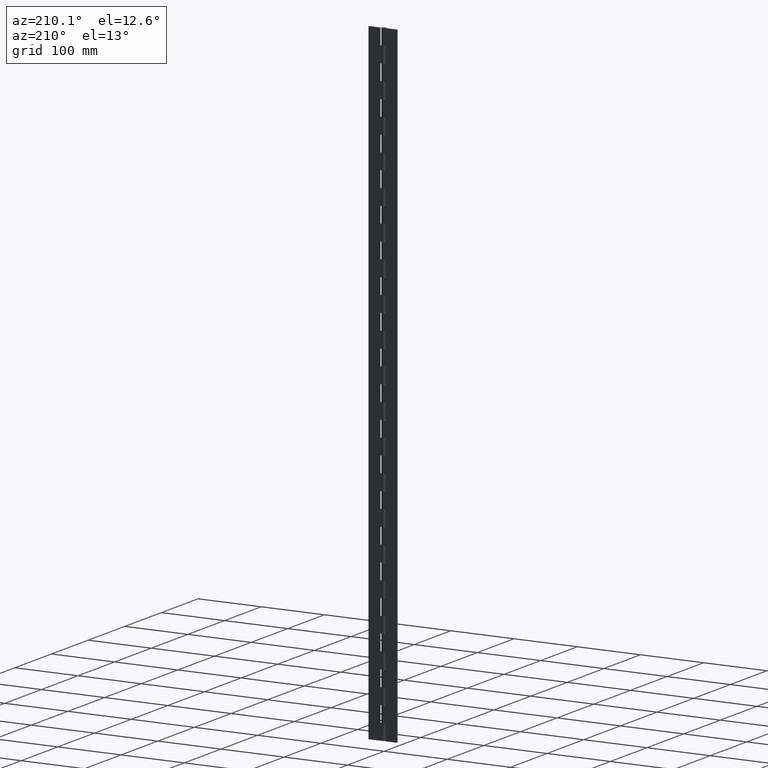
[diagram: clean part render]
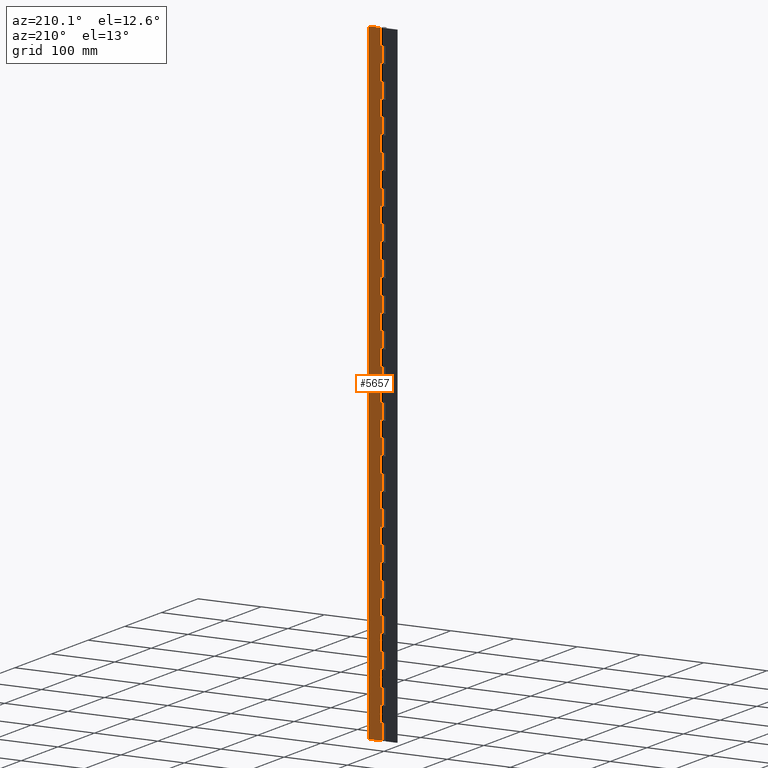
[diagram: same view with one face highlighted and labeled with its STEP entity id]
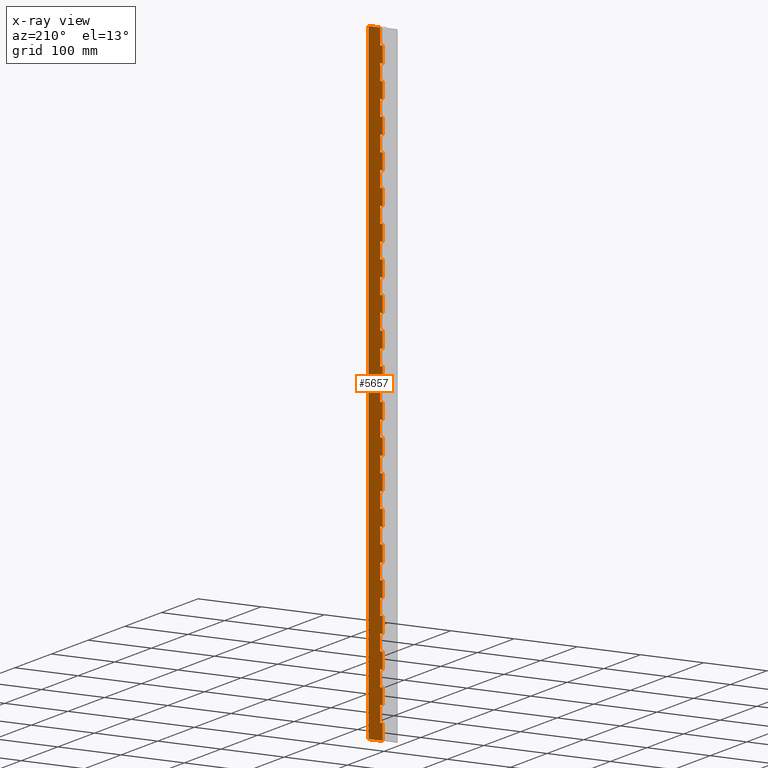
[diagram: x-ray of the same camera — body ghosted, the highlighted face saturated]
A machine part, auxiliary view. The second image highlights one B-rep face of the part: STEP entity #5657.
The next image is the same camera in x-ray: the body ghosted, the highlighted face saturated — about 0% of this face is hidden behind the body in this view.
In plain terms, the highlighted face is a freeform B-spline surface patch.
Its self-contained STEP definition (entity closure, byte-faithful):
#51=CARTESIAN_POINT('',(4.299996000000000,3.349998000000000,999.999977999999940));
#52=VERTEX_POINT('',#51);
#58=CARTESIAN_POINT('',(4.299996000000000,3.349998000000000,975.0));
#59=VERTEX_POINT('',#58);
#60=CARTESIAN_POINT('',(4.299996000000000,3.349998000000000,975.0));
#61=CARTESIAN_POINT('',(4.299996000000000,3.349998000000000,999.999977999999940));
#62=QUASI_UNIFORM_CURVE('',1,(#60,#61),.UNSPECIFIED.,.F.,.U.);
#63=EDGE_CURVE('',#59,#52,#62,.T.);
#86=CARTESIAN_POINT('',(0.003660600504215,3.349998000000000,975.0));
#87=VERTEX_POINT('',#86);
#88=CARTESIAN_POINT('',(0.003660600504215,3.349998000000000,975.0));
#89=CARTESIAN_POINT('',(4.299996000000000,3.349998000000000,975.0));
#90=QUASI_UNIFORM_CURVE('',1,(#88,#89),.UNSPECIFIED.,.F.,.U.);
#91=EDGE_CURVE('',#87,#59,#90,.T.);
#213=CARTESIAN_POINT('',(0.003660600504215,3.349998000000000,950.000007999999980));
#214=VERTEX_POINT('',#213);
#220=CARTESIAN_POINT('',(4.299996000000000,3.349998000000000,950.000007999999980));
#221=VERTEX_POINT('',#220);
#222=CARTESIAN_POINT('',(4.299996000000000,3.349998000000000,950.000007999999980));
#223=CARTESIAN_POINT('',(0.003660600504215,3.349998000000000,950.000007999999980));
#224=QUASI_UNIFORM_CURVE('',1,(#222,#223),.UNSPECIFIED.,.F.,.U.);
#225=EDGE_CURVE('',#221,#214,#224,.T.);
#248=CARTESIAN_POINT('',(4.299996000000000,3.349998000000000,925.0));
#249=VERTEX_POINT('',#248);
#250=CARTESIAN_POINT('',(4.299996000000000,3.349998000000000,925.0));
#251=CARTESIAN_POINT('',(4.299996000000000,3.349998000000000,950.000007999999980));
#252=QUASI_UNIFORM_CURVE('',1,(#250,#251),.UNSPECIFIED.,.F.,.U.);
#253=EDGE_CURVE('',#249,#221,#252,.T.);
#276=CARTESIAN_POINT('',(0.003660600504215,3.349998000000000,925.0));
#277=VERTEX_POINT('',#276);
#278=CARTESIAN_POINT('',(0.003660600504215,3.349998000000000,925.0));
#279=CARTESIAN_POINT('',(4.299996000000000,3.349998000000000,925.0));
#280=QUASI_UNIFORM_CURVE('',1,(#278,#279),.UNSPECIFIED.,.F.,.U.);
#281=EDGE_CURVE('',#277,#249,#280,.T.);
#403=CARTESIAN_POINT('',(0.003660600504215,3.349998000000000,900.000007999999980));
#404=VERTEX_POINT('',#403);
#410=CARTESIAN_POINT('',(4.299996000000000,3.349998000000000,900.000007999999980));
#411=VERTEX_POINT('',#410);
#412=CARTESIAN_POINT('',(4.299996000000000,3.349998000000000,900.000007999999980));
#413=CARTESIAN_POINT('',(0.003660600504215,3.349998000000000,900.000007999999980));
#414=QUASI_UNIFORM_CURVE('',1,(#412,#413),.UNSPECIFIED.,.F.,.U.);
#415=EDGE_CURVE('',#411,#404,#414,.T.);
#438=CARTESIAN_POINT('',(4.299996000000000,3.349998000000000,875.0));
#439=VERTEX_POINT('',#438);
#440=CARTESIAN_POINT('',(4.299996000000000,3.349998000000000,875.0));
#441=CARTESIAN_POINT('',(4.299996000000000,3.349998000000000,900.000007999999980));
#442=QUASI_UNIFORM_CURVE('',1,(#440,#441),.UNSPECIFIED.,.F.,.U.);
#443=EDGE_CURVE('',#439,#411,#442,.T.);
#466=CARTESIAN_POINT('',(0.003660600504215,3.349998000000000,875.0));
#467=VERTEX_POINT('',#466);
#468=CARTESIAN_POINT('',(0.003660600504215,3.349998000000000,875.0));
#469=CARTESIAN_POINT('',(4.299996000000000,3.349998000000000,875.0));
#470=QUASI_UNIFORM_CURVE('',1,(#468,#469),.UNSPECIFIED.,.F.,.U.);
#471=EDGE_CURVE('',#467,#439,#470,.T.);
#593=CARTESIAN_POINT('',(0.003660600504215,3.349998000000000,850.000007999999980));
#594=VERTEX_POINT('',#593);
#600=CARTESIAN_POINT('',(4.299996000000000,3.349998000000000,850.000007999999980));
#601=VERTEX_POINT('',#600);
#602=CARTESIAN_POINT('',(4.299996000000000,3.349998000000000,850.000007999999980));
#603=CARTESIAN_POINT('',(0.003660600504215,3.349998000000000,850.000007999999980));
#604=QUASI_UNIFORM_CURVE('',1,(#602,#603),.UNSPECIFIED.,.F.,.U.);
#605=EDGE_CURVE('',#601,#594,#604,.T.);
#628=CARTESIAN_POINT('',(4.299996000000000,3.349998000000000,825.0));
#629=VERTEX_POINT('',#628);
#630=CARTESIAN_POINT('',(4.299996000000000,3.349998000000000,825.0));
#631=CARTESIAN_POINT('',(4.299996000000000,3.349998000000000,850.000007999999980));
#632=QUASI_UNIFORM_CURVE('',1,(#630,#631),.UNSPECIFIED.,.F.,.U.);
#633=EDGE_CURVE('',#629,#601,#632,.T.);
#656=CARTESIAN_POINT('',(0.003660600504215,3.349998000000000,825.0));
#657=VERTEX_POINT('',#656);
#658=CARTESIAN_POINT('',(0.003660600504215,3.349998000000000,825.0));
#659=CARTESIAN_POINT('',(4.299996000000000,3.349998000000000,825.0));
#660=QUASI_UNIFORM_CURVE('',1,(#658,#659),.UNSPECIFIED.,.F.,.U.);
#661=EDGE_CURVE('',#657,#629,#660,.T.);
#783=CARTESIAN_POINT('',(0.003660600504215,3.349998000000000,800.000008000000090));
#784=VERTEX_POINT('',#783);
#790=CARTESIAN_POINT('',(4.299996000000000,3.349998000000000,800.000008000000090));
#791=VERTEX_POINT('',#790);
#792=CARTESIAN_POINT('',(4.299996000000000,3.349998000000000,800.000008000000090));
#793=CARTESIAN_POINT('',(0.003660600504215,3.349998000000000,800.000008000000090));
#794=QUASI_UNIFORM_CURVE('',1,(#792,#793),.UNSPECIFIED.,.F.,.U.);
#795=EDGE_CURVE('',#791,#784,#794,.T.);
#818=CARTESIAN_POINT('',(4.299996000000000,3.349998000000000,775.0));
#819=VERTEX_POINT('',#818);
#820=CARTESIAN_POINT('',(4.299996000000000,3.349998000000000,775.0));
#821=CARTESIAN_POINT('',(4.299996000000000,3.349998000000000,800.000008000000090));
#822=QUASI_UNIFORM_CURVE('',1,(#820,#821),.UNSPECIFIED.,.F.,.U.);
#823=EDGE_CURVE('',#819,#791,#822,.T.);
#846=CARTESIAN_POINT('',(0.003660600504215,3.349998000000000,775.0));
#847=VERTEX_POINT('',#846);
#848=CARTESIAN_POINT('',(0.003660600504215,3.349998000000000,775.0));
#849=CARTESIAN_POINT('',(4.299996000000000,3.349998000000000,775.0));
#850=QUASI_UNIFORM_CURVE('',1,(#848,#849),.UNSPECIFIED.,.F.,.U.);
#851=EDGE_CURVE('',#847,#819,#850,.T.);
#973=CARTESIAN_POINT('',(0.003660600504215,3.349998000000000,750.000007999999980));
#974=VERTEX_POINT('',#973);
#980=CARTESIAN_POINT('',(4.299996000000000,3.349998000000000,750.000007999999980));
#981=VERTEX_POINT('',#980);
#982=CARTESIAN_POINT('',(4.299996000000000,3.349998000000000,750.000007999999980));
#983=CARTESIAN_POINT('',(0.003660600504215,3.349998000000000,750.000007999999980));
#984=QUASI_UNIFORM_CURVE('',1,(#982,#983),.UNSPECIFIED.,.F.,.U.);
#985=EDGE_CURVE('',#981,#974,#984,.T.);
#1008=CARTESIAN_POINT('',(4.299996000000000,3.349998000000000,725.0));
#1009=VERTEX_POINT('',#1008);
#1010=CARTESIAN_POINT('',(4.299996000000000,3.349998000000000,725.0));
#1011=CARTESIAN_POINT('',(4.299996000000000,3.349998000000000,750.000007999999980));
#1012=QUASI_UNIFORM_CURVE('',1,(#1010,#1011),.UNSPECIFIED.,.F.,.U.);
#1013=EDGE_CURVE('',#1009,#981,#1012,.T.);
#1036=CARTESIAN_POINT('',(0.003660600504215,3.349998000000000,725.0));
#1037=VERTEX_POINT('',#1036);
#1038=CARTESIAN_POINT('',(0.003660600504215,3.349998000000000,725.0));
#1039=CARTESIAN_POINT('',(4.299996000000000,3.349998000000000,725.0));
#1040=QUASI_UNIFORM_CURVE('',1,(#1038,#1039),.UNSPECIFIED.,.F.,.U.);
#1041=EDGE_CURVE('',#1037,#1009,#1040,.T.);
#1163=CARTESIAN_POINT('',(0.003660600504215,3.349998000000000,700.000007999999980));
#1164=VERTEX_POINT('',#1163);
#1170=CARTESIAN_POINT('',(4.299996000000000,3.349998000000000,700.000007999999980));
#1171=VERTEX_POINT('',#1170);
#1172=CARTESIAN_POINT('',(4.299996000000000,3.349998000000000,700.000007999999980));
#1173=CARTESIAN_POINT('',(0.003660600504215,3.349998000000000,700.000007999999980));
#1174=QUASI_UNIFORM_CURVE('',1,(#1172,#1173),.UNSPECIFIED.,.F.,.U.);
#1175=EDGE_CURVE('',#1171,#1164,#1174,.T.);
#1198=CARTESIAN_POINT('',(4.299996000000000,3.349998000000000,675.0));
#1199=VERTEX_POINT('',#1198);
#1200=CARTESIAN_POINT('',(4.299996000000000,3.349998000000000,675.0));
#1201=CARTESIAN_POINT('',(4.299996000000000,3.349998000000000,700.000007999999980));
#1202=QUASI_UNIFORM_CURVE('',1,(#1200,#1201),.UNSPECIFIED.,.F.,.U.);
#1203=EDGE_CURVE('',#1199,#1171,#1202,.T.);
#1226=CARTESIAN_POINT('',(0.003660600504215,3.349998000000000,675.0));
#1227=VERTEX_POINT('',#1226);
#1228=CARTESIAN_POINT('',(0.003660600504215,3.349998000000000,675.0));
#1229=CARTESIAN_POINT('',(4.299996000000000,3.349998000000000,675.0));
#1230=QUASI_UNIFORM_CURVE('',1,(#1228,#1229),.UNSPECIFIED.,.F.,.U.);
#1231=EDGE_CURVE('',#1227,#1199,#1230,.T.);
#1353=CARTESIAN_POINT('',(0.003660600504215,3.349998000000000,650.000007999999980));
#1354=VERTEX_POINT('',#1353);
#1360=CARTESIAN_POINT('',(4.299996000000000,3.349998000000000,650.000007999999980));
#1361=VERTEX_POINT('',#1360);
#1362=CARTESIAN_POINT('',(4.299996000000000,3.349998000000000,650.000007999999980));
#1363=CARTESIAN_POINT('',(0.003660600504215,3.349998000000000,650.000007999999980));
#1364=QUASI_UNIFORM_CURVE('',1,(#1362,#1363),.UNSPECIFIED.,.F.,.U.);
#1365=EDGE_CURVE('',#1361,#1354,#1364,.T.);
#1388=CARTESIAN_POINT('',(4.299996000000000,3.349998000000000,625.0));
#1389=VERTEX_POINT('',#1388);
#1390=CARTESIAN_POINT('',(4.299996000000000,3.349998000000000,625.0));
#1391=CARTESIAN_POINT('',(4.299996000000000,3.349998000000000,650.000007999999980));
#1392=QUASI_UNIFORM_CURVE('',1,(#1390,#1391),.UNSPECIFIED.,.F.,.U.);
#1393=EDGE_CURVE('',#1389,#1361,#1392,.T.);
#1416=CARTESIAN_POINT('',(0.003660600504215,3.349998000000000,625.0));
#1417=VERTEX_POINT('',#1416);
#1418=CARTESIAN_POINT('',(0.003660600504215,3.349998000000000,625.0));
#1419=CARTESIAN_POINT('',(4.299996000000000,3.349998000000000,625.0));
#1420=QUASI_UNIFORM_CURVE('',1,(#1418,#1419),.UNSPECIFIED.,.F.,.U.);
#1421=EDGE_CURVE('',#1417,#1389,#1420,.T.);
#1543=CARTESIAN_POINT('',(0.003660600504215,3.349998000000000,600.000007999999980));
#1544=VERTEX_POINT('',#1543);
#1550=CARTESIAN_POINT('',(4.299996000000000,3.349998000000000,600.000007999999980));
#1551=VERTEX_POINT('',#1550);
#1552=CARTESIAN_POINT('',(4.299996000000000,3.349998000000000,600.000007999999980));
#1553=CARTESIAN_POINT('',(0.003660600504215,3.349998000000000,600.000007999999980));
#1554=QUASI_UNIFORM_CURVE('',1,(#1552,#1553),.UNSPECIFIED.,.F.,.U.);
#1555=EDGE_CURVE('',#1551,#1544,#1554,.T.);
#1578=CARTESIAN_POINT('',(4.299996000000000,3.349998000000000,575.0));
#1579=VERTEX_POINT('',#1578);
#1580=CARTESIAN_POINT('',(4.299996000000000,3.349998000000000,575.0));
#1581=CARTESIAN_POINT('',(4.299996000000000,3.349998000000000,600.000007999999980));
#1582=QUASI_UNIFORM_CURVE('',1,(#1580,#1581),.UNSPECIFIED.,.F.,.U.);
#1583=EDGE_CURVE('',#1579,#1551,#1582,.T.);
#1606=CARTESIAN_POINT('',(0.003660600504215,3.349998000000000,575.0));
#1607=VERTEX_POINT('',#1606);
#1608=CARTESIAN_POINT('',(0.003660600504215,3.349998000000000,575.0));
#1609=CARTESIAN_POINT('',(4.299996000000000,3.349998000000000,575.0));
#1610=QUASI_UNIFORM_CURVE('',1,(#1608,#1609),.UNSPECIFIED.,.F.,.U.);
#1611=EDGE_CURVE('',#1607,#1579,#1610,.T.);
#1733=CARTESIAN_POINT('',(0.003660600504215,3.349998000000000,550.000008000000090));
#1734=VERTEX_POINT('',#1733);
#1740=CARTESIAN_POINT('',(4.299996000000000,3.349998000000000,550.000008000000090));
#1741=VERTEX_POINT('',#1740);
#1742=CARTESIAN_POINT('',(4.299996000000000,3.349998000000000,550.000008000000090));
#1743=CARTESIAN_POINT('',(0.003660600504215,3.349998000000000,550.000008000000090));
#1744=QUASI_UNIFORM_CURVE('',1,(#1742,#1743),.UNSPECIFIED.,.F.,.U.);
#1745=EDGE_CURVE('',#1741,#1734,#1744,.T.);
#1768=CARTESIAN_POINT('',(4.299996000000000,3.349998000000000,525.0));
#1769=VERTEX_POINT('',#1768);
#1770=CARTESIAN_POINT('',(4.299996000000000,3.349998000000000,525.0));
#1771=CARTESIAN_POINT('',(4.299996000000000,3.349998000000000,550.000008000000090));
#1772=QUASI_UNIFORM_CURVE('',1,(#1770,#1771),.UNSPECIFIED.,.F.,.U.);
#1773=EDGE_CURVE('',#1769,#1741,#1772,.T.);
#1796=CARTESIAN_POINT('',(0.003660600504215,3.349998000000000,525.0));
#1797=VERTEX_POINT('',#1796);
#1798=CARTESIAN_POINT('',(0.003660600504215,3.349998000000000,525.0));
#1799=CARTESIAN_POINT('',(4.299996000000000,3.349998000000000,525.0));
#1800=QUASI_UNIFORM_CURVE('',1,(#1798,#1799),.UNSPECIFIED.,.F.,.U.);
#1801=EDGE_CURVE('',#1797,#1769,#1800,.T.);
#1923=CARTESIAN_POINT('',(0.003660600504215,3.349998000000000,500.000007999999980));
#1924=VERTEX_POINT('',#1923);
#1930=CARTESIAN_POINT('',(4.299996000000000,3.349998000000000,500.000007999999980));
#1931=VERTEX_POINT('',#1930);
#1932=CARTESIAN_POINT('',(4.299996000000000,3.349998000000000,500.000007999999980));
#1933=CARTESIAN_POINT('',(0.003660600504215,3.349998000000000,500.000007999999980));
#1934=QUASI_UNIFORM_CURVE('',1,(#1932,#1933),.UNSPECIFIED.,.F.,.U.);
#1935=EDGE_CURVE('',#1931,#1924,#1934,.T.);
#1958=CARTESIAN_POINT('',(4.299996000000000,3.349998000000000,475.0));
#1959=VERTEX_POINT('',#1958);
#1960=CARTESIAN_POINT('',(4.299996000000000,3.349998000000000,475.0));
#1961=CARTESIAN_POINT('',(4.299996000000000,3.349998000000000,500.000007999999980));
#1962=QUASI_UNIFORM_CURVE('',1,(#1960,#1961),.UNSPECIFIED.,.F.,.U.);
#1963=EDGE_CURVE('',#1959,#1931,#1962,.T.);
#1986=CARTESIAN_POINT('',(0.003660600504215,3.349998000000000,475.0));
#1987=VERTEX_POINT('',#1986);
#1988=CARTESIAN_POINT('',(0.003660600504215,3.349998000000000,475.0));
#1989=CARTESIAN_POINT('',(4.299996000000000,3.349998000000000,475.0));
#1990=QUASI_UNIFORM_CURVE('',1,(#1988,#1989),.UNSPECIFIED.,.F.,.U.);
#1991=EDGE_CURVE('',#1987,#1959,#1990,.T.);
#2113=CARTESIAN_POINT('',(0.003660600504215,3.349998000000000,450.000007999999980));
#2114=VERTEX_POINT('',#2113);
#2120=CARTESIAN_POINT('',(4.299996000000000,3.349998000000000,450.000007999999980));
#2121=VERTEX_POINT('',#2120);
#2122=CARTESIAN_POINT('',(4.299996000000000,3.349998000000000,450.000007999999980));
#2123=CARTESIAN_POINT('',(0.003660600504215,3.349998000000000,450.000007999999980));
#2124=QUASI_UNIFORM_CURVE('',1,(#2122,#2123),.UNSPECIFIED.,.F.,.U.);
#2125=EDGE_CURVE('',#2121,#2114,#2124,.T.);
#2148=CARTESIAN_POINT('',(4.299996000000000,3.349998000000000,425.0));
#2149=VERTEX_POINT('',#2148);
#2150=CARTESIAN_POINT('',(4.299996000000000,3.349998000000000,425.0));
#2151=CARTESIAN_POINT('',(4.299996000000000,3.349998000000000,450.000007999999980));
#2152=QUASI_UNIFORM_CURVE('',1,(#2150,#2151),.UNSPECIFIED.,.F.,.U.);
#2153=EDGE_CURVE('',#2149,#2121,#2152,.T.);
#2176=CARTESIAN_POINT('',(0.003660600504215,3.349998000000000,425.0));
#2177=VERTEX_POINT('',#2176);
#2178=CARTESIAN_POINT('',(0.003660600504215,3.349998000000000,425.0));
#2179=CARTESIAN_POINT('',(4.299996000000000,3.349998000000000,425.0));
#2180=QUASI_UNIFORM_CURVE('',1,(#2178,#2179),.UNSPECIFIED.,.F.,.U.);
#2181=EDGE_CURVE('',#2177,#2149,#2180,.T.);
#2303=CARTESIAN_POINT('',(0.003660600504215,3.349998000000000,400.000007999999980));
#2304=VERTEX_POINT('',#2303);
#2310=CARTESIAN_POINT('',(4.299996000000000,3.349998000000000,400.000007999999980));
#2311=VERTEX_POINT('',#2310);
#2312=CARTESIAN_POINT('',(4.299996000000000,3.349998000000000,400.000007999999980));
#2313=CARTESIAN_POINT('',(0.003660600504215,3.349998000000000,400.000007999999980));
#2314=QUASI_UNIFORM_CURVE('',1,(#2312,#2313),.UNSPECIFIED.,.F.,.U.);
#2315=EDGE_CURVE('',#2311,#2304,#2314,.T.);
#2338=CARTESIAN_POINT('',(4.299996000000000,3.349998000000000,375.0));
#2339=VERTEX_POINT('',#2338);
#2340=CARTESIAN_POINT('',(4.299996000000000,3.349998000000000,375.0));
#2341=CARTESIAN_POINT('',(4.299996000000000,3.349998000000000,400.000007999999980));
#2342=QUASI_UNIFORM_CURVE('',1,(#2340,#2341),.UNSPECIFIED.,.F.,.U.);
#2343=EDGE_CURVE('',#2339,#2311,#2342,.T.);
#2366=CARTESIAN_POINT('',(0.003660600504215,3.349998000000000,375.0));
#2367=VERTEX_POINT('',#2366);
#2368=CARTESIAN_POINT('',(0.003660600504215,3.349998000000000,375.0));
#2369=CARTESIAN_POINT('',(4.299996000000000,3.349998000000000,375.0));
#2370=QUASI_UNIFORM_CURVE('',1,(#2368,#2369),.UNSPECIFIED.,.F.,.U.);
#2371=EDGE_CURVE('',#2367,#2339,#2370,.T.);
#2493=CARTESIAN_POINT('',(0.003660600504215,3.349998000000000,350.000007999999980));
#2494=VERTEX_POINT('',#2493);
#2500=CARTESIAN_POINT('',(4.299996000000000,3.349998000000000,350.000007999999980));
#2501=VERTEX_POINT('',#2500);
#2502=CARTESIAN_POINT('',(4.299996000000000,3.349998000000000,350.000007999999980));
#2503=CARTESIAN_POINT('',(0.003660600504215,3.349998000000000,350.000007999999980));
#2504=QUASI_UNIFORM_CURVE('',1,(#2502,#2503),.UNSPECIFIED.,.F.,.U.);
#2505=EDGE_CURVE('',#2501,#2494,#2504,.T.);
#2528=CARTESIAN_POINT('',(4.299996000000000,3.349998000000000,325.0));
#2529=VERTEX_POINT('',#2528);
#2530=CARTESIAN_POINT('',(4.299996000000000,3.349998000000000,325.0));
#2531=CARTESIAN_POINT('',(4.299996000000000,3.349998000000000,350.000007999999980));
#2532=QUASI_UNIFORM_CURVE('',1,(#2530,#2531),.UNSPECIFIED.,.F.,.U.);
#2533=EDGE_CURVE('',#2529,#2501,#2532,.T.);
#2556=CARTESIAN_POINT('',(0.003660600504215,3.349998000000000,325.0));
#2557=VERTEX_POINT('',#2556);
#2558=CARTESIAN_POINT('',(0.003660600504215,3.349998000000000,325.0));
#2559=CARTESIAN_POINT('',(4.299996000000000,3.349998000000000,325.0));
#2560=QUASI_UNIFORM_CURVE('',1,(#2558,#2559),.UNSPECIFIED.,.F.,.U.);
#2561=EDGE_CURVE('',#2557,#2529,#2560,.T.);
#2683=CARTESIAN_POINT('',(0.003660600504215,3.349998000000000,300.000007999999980));
#2684=VERTEX_POINT('',#2683);
#2690=CARTESIAN_POINT('',(4.299996000000000,3.349998000000000,300.000007999999980));
#2691=VERTEX_POINT('',#2690);
#2692=CARTESIAN_POINT('',(4.299996000000000,3.349998000000000,300.000007999999980));
#2693=CARTESIAN_POINT('',(0.003660600504215,3.349998000000000,300.000007999999980));
#2694=QUASI_UNIFORM_CURVE('',1,(#2692,#2693),.UNSPECIFIED.,.F.,.U.);
#2695=EDGE_CURVE('',#2691,#2684,#2694,.T.);
#2718=CARTESIAN_POINT('',(4.299996000000000,3.349998000000000,275.0));
#2719=VERTEX_POINT('',#2718);
#2720=CARTESIAN_POINT('',(4.299996000000000,3.349998000000000,275.0));
#2721=CARTESIAN_POINT('',(4.299996000000000,3.349998000000000,300.000007999999980));
#2722=QUASI_UNIFORM_CURVE('',1,(#2720,#2721),.UNSPECIFIED.,.F.,.U.);
#2723=EDGE_CURVE('',#2719,#2691,#2722,.T.);
#2746=CARTESIAN_POINT('',(0.003660600504215,3.349998000000000,275.0));
#2747=VERTEX_POINT('',#2746);
#2748=CARTESIAN_POINT('',(0.003660600504215,3.349998000000000,275.0));
#2749=CARTESIAN_POINT('',(4.299996000000000,3.349998000000000,275.0));
#2750=QUASI_UNIFORM_CURVE('',1,(#2748,#2749),.UNSPECIFIED.,.F.,.U.);
#2751=EDGE_CURVE('',#2747,#2719,#2750,.T.);
#2873=CARTESIAN_POINT('',(0.003660600504215,3.349998000000000,250.000008000000010));
#2874=VERTEX_POINT('',#2873);
#2880=CARTESIAN_POINT('',(4.299996000000000,3.349998000000000,250.000008000000010));
#2881=VERTEX_POINT('',#2880);
#2882=CARTESIAN_POINT('',(4.299996000000000,3.349998000000000,250.000008000000010));
#2883=CARTESIAN_POINT('',(0.003660600504215,3.349998000000000,250.000008000000010));
#2884=QUASI_UNIFORM_CURVE('',1,(#2882,#2883),.UNSPECIFIED.,.F.,.U.);
#2885=EDGE_CURVE('',#2881,#2874,#2884,.T.);
#2908=CARTESIAN_POINT('',(4.299996000000000,3.349998000000000,225.0));
#2909=VERTEX_POINT('',#2908);
#2910=CARTESIAN_POINT('',(4.299996000000000,3.349998000000000,225.0));
#2911=CARTESIAN_POINT('',(4.299996000000000,3.349998000000000,250.000008000000010));
#2912=QUASI_UNIFORM_CURVE('',1,(#2910,#2911),.UNSPECIFIED.,.F.,.U.);
#2913=EDGE_CURVE('',#2909,#2881,#2912,.T.);
#2936=CARTESIAN_POINT('',(0.003660600504215,3.349998000000000,225.0));
#2937=VERTEX_POINT('',#2936);
#2938=CARTESIAN_POINT('',(0.003660600504215,3.349998000000000,225.0));
#2939=CARTESIAN_POINT('',(4.299996000000000,3.349998000000000,225.0));
#2940=QUASI_UNIFORM_CURVE('',1,(#2938,#2939),.UNSPECIFIED.,.F.,.U.);
#2941=EDGE_CURVE('',#2937,#2909,#2940,.T.);
#3063=CARTESIAN_POINT('',(0.003660600504215,3.349998000000000,200.000008000000010));
#3064=VERTEX_POINT('',#3063);
#3070=CARTESIAN_POINT('',(4.299996000000000,3.349998000000000,200.000008000000010));
#3071=VERTEX_POINT('',#3070);
#3072=CARTESIAN_POINT('',(4.299996000000000,3.349998000000000,200.000008000000010));
#3073=CARTESIAN_POINT('',(0.003660600504215,3.349998000000000,200.000008000000010));
#3074=QUASI_UNIFORM_CURVE('',1,(#3072,#3073),.UNSPECIFIED.,.F.,.U.);
#3075=EDGE_CURVE('',#3071,#3064,#3074,.T.);
#3098=CARTESIAN_POINT('',(4.299996000000000,3.349998000000000,175.0));
#3099=VERTEX_POINT('',#3098);
#3100=CARTESIAN_POINT('',(4.299996000000000,3.349998000000000,175.0));
#3101=CARTESIAN_POINT('',(4.299996000000000,3.349998000000000,200.000008000000010));
#3102=QUASI_UNIFORM_CURVE('',1,(#3100,#3101),.UNSPECIFIED.,.F.,.U.);
#3103=EDGE_CURVE('',#3099,#3071,#3102,.T.);
#3126=CARTESIAN_POINT('',(0.003660600504215,3.349998000000000,175.0));
#3127=VERTEX_POINT('',#3126);
#3128=CARTESIAN_POINT('',(0.003660600504215,3.349998000000000,175.0));
#3129=CARTESIAN_POINT('',(4.299996000000000,3.349998000000000,175.0));
#3130=QUASI_UNIFORM_CURVE('',1,(#3128,#3129),.UNSPECIFIED.,.F.,.U.);
#3131=EDGE_CURVE('',#3127,#3099,#3130,.T.);
#3253=CARTESIAN_POINT('',(0.003660600504215,3.349998000000000,150.000008000000010));
#3254=VERTEX_POINT('',#3253);
#3260=CARTESIAN_POINT('',(4.299996000000000,3.349998000000000,150.000008000000010));
#3261=VERTEX_POINT('',#3260);
#3262=CARTESIAN_POINT('',(4.299996000000000,3.349998000000000,150.000008000000010));
#3263=CARTESIAN_POINT('',(0.003660600504215,3.349998000000000,150.000008000000010));
#3264=QUASI_UNIFORM_CURVE('',1,(#3262,#3263),.UNSPECIFIED.,.F.,.U.);
#3265=EDGE_CURVE('',#3261,#3254,#3264,.T.);
#3288=CARTESIAN_POINT('',(4.299996000000000,3.349998000000000,125.0));
#3289=VERTEX_POINT('',#3288);
#3290=CARTESIAN_POINT('',(4.299996000000000,3.349998000000000,125.0));
#3291=CARTESIAN_POINT('',(4.299996000000000,3.349998000000000,150.000008000000010));
#3292=QUASI_UNIFORM_CURVE('',1,(#3290,#3291),.UNSPECIFIED.,.F.,.U.);
#3293=EDGE_CURVE('',#3289,#3261,#3292,.T.);
#3316=CARTESIAN_POINT('',(0.003660600504215,3.349998000000000,125.0));
#3317=VERTEX_POINT('',#3316);
#3318=CARTESIAN_POINT('',(0.003660600504215,3.349998000000000,125.0));
#3319=CARTESIAN_POINT('',(4.299996000000000,3.349998000000000,125.0));
#3320=QUASI_UNIFORM_CURVE('',1,(#3318,#3319),.UNSPECIFIED.,.F.,.U.);
#3321=EDGE_CURVE('',#3317,#3289,#3320,.T.);
#3443=CARTESIAN_POINT('',(0.003660600504215,3.349998000000000,100.000007999999990));
#3444=VERTEX_POINT('',#3443);
#3450=CARTESIAN_POINT('',(4.299996000000000,3.349998000000000,100.000007999999990));
#3451=VERTEX_POINT('',#3450);
#3452=CARTESIAN_POINT('',(4.299996000000000,3.349998000000000,100.000007999999990));
#3453=CARTESIAN_POINT('',(0.003660600504215,3.349998000000000,100.000007999999990));
#3454=QUASI_UNIFORM_CURVE('',1,(#3452,#3453),.UNSPECIFIED.,.F.,.U.);
#3455=EDGE_CURVE('',#3451,#3444,#3454,.T.);
#3478=CARTESIAN_POINT('',(4.299996000000000,3.349998000000000,75.0));
#3479=VERTEX_POINT('',#3478);
#3480=CARTESIAN_POINT('',(4.299996000000000,3.349998000000000,75.0));
#3481=CARTESIAN_POINT('',(4.299996000000000,3.349998000000000,100.000007999999990));
#3482=QUASI_UNIFORM_CURVE('',1,(#3480,#3481),.UNSPECIFIED.,.F.,.U.);
#3483=EDGE_CURVE('',#3479,#3451,#3482,.T.);
#3506=CARTESIAN_POINT('',(0.003660600504215,3.349998000000000,75.0));
#3507=VERTEX_POINT('',#3506);
#3508=CARTESIAN_POINT('',(0.003660600504215,3.349998000000000,75.0));
#3509=CARTESIAN_POINT('',(4.299996000000000,3.349998000000000,75.0));
#3510=QUASI_UNIFORM_CURVE('',1,(#3508,#3509),.UNSPECIFIED.,.F.,.U.);
#3511=EDGE_CURVE('',#3507,#3479,#3510,.T.);
#3633=CARTESIAN_POINT('',(0.003660600504215,3.349998000000000,50.000007999999902));
#3634=VERTEX_POINT('',#3633);
#3640=CARTESIAN_POINT('',(4.299996000000000,3.349998000000000,50.000007999999902));
#3641=VERTEX_POINT('',#3640);
#3642=CARTESIAN_POINT('',(4.299996000000000,3.349998000000000,50.000007999999902));
#3643=CARTESIAN_POINT('',(0.003660600504215,3.349998000000000,50.000007999999902));
#3644=QUASI_UNIFORM_CURVE('',1,(#3642,#3643),.UNSPECIFIED.,.F.,.U.);
#3645=EDGE_CURVE('',#3641,#3634,#3644,.T.);
#3668=CARTESIAN_POINT('',(4.299996000000000,3.349998000000000,25.0));
#3669=VERTEX_POINT('',#3668);
#3670=CARTESIAN_POINT('',(4.299996000000000,3.349998000000000,25.0));
#3671=CARTESIAN_POINT('',(4.299996000000000,3.349998000000000,50.000007999999902));
#3672=QUASI_UNIFORM_CURVE('',1,(#3670,#3671),.UNSPECIFIED.,.F.,.U.);
#3673=EDGE_CURVE('',#3669,#3641,#3672,.T.);
#3696=CARTESIAN_POINT('',(0.003660600504215,3.349998000000000,25.0));
#3697=VERTEX_POINT('',#3696);
#3698=CARTESIAN_POINT('',(0.003660600504215,3.349998000000000,25.0));
#3699=CARTESIAN_POINT('',(4.299996000000000,3.349998000000000,25.0));
#3700=QUASI_UNIFORM_CURVE('',1,(#3698,#3699),.UNSPECIFIED.,.F.,.U.);
#3701=EDGE_CURVE('',#3697,#3669,#3700,.T.);
#3809=CARTESIAN_POINT('',(0.003660600504215,3.349998000000000,0.0));
#3810=VERTEX_POINT('',#3809);
#3830=CARTESIAN_POINT('',(22.500000000000000,3.349998000000000,0.0));
#3831=VERTEX_POINT('',#3830);
#3832=CARTESIAN_POINT('',(0.003660600504215,3.349998000000000,0.0));
#3833=CARTESIAN_POINT('',(22.500000000000000,3.349998000000000,0.0));
#3834=QUASI_UNIFORM_CURVE('',1,(#3832,#3833),.UNSPECIFIED.,.F.,.U.);
#3835=EDGE_CURVE('',#3810,#3831,#3834,.T.);
#3851=CARTESIAN_POINT('',(22.500000000000000,3.349998000000000,999.999977999999940));
#3852=VERTEX_POINT('',#3851);
#3853=CARTESIAN_POINT('',(22.500000000000000,3.349998000000000,999.999977999999940));
#3854=CARTESIAN_POINT('',(22.500000000000000,3.349998000000000,0.0));
#3855=QUASI_UNIFORM_CURVE('',1,(#3853,#3854),.UNSPECIFIED.,.F.,.U.);
#3856=EDGE_CURVE('',#3852,#3831,#3855,.T.);
#3897=CARTESIAN_POINT('',(0.003660600504215,3.349998000000000,25.0));
#3898=CARTESIAN_POINT('',(0.003660600504215,3.349998000000000,0.0));
#3899=QUASI_UNIFORM_CURVE('',1,(#3897,#3898),.UNSPECIFIED.,.F.,.U.);
#3900=EDGE_CURVE('',#3697,#3810,#3899,.T.);
#3984=CARTESIAN_POINT('',(0.003660600504215,3.349998000000000,75.0));
#3985=CARTESIAN_POINT('',(0.003660600504215,3.349998000000000,50.000007999999902));
#3986=QUASI_UNIFORM_CURVE('',1,(#3984,#3985),.UNSPECIFIED.,.F.,.U.);
#3987=EDGE_CURVE('',#3507,#3634,#3986,.T.);
#4072=CARTESIAN_POINT('',(0.003660600504215,3.349998000000000,125.0));
#4073=CARTESIAN_POINT('',(0.003660600504215,3.349998000000000,100.000007999999990));
#4074=QUASI_UNIFORM_CURVE('',1,(#4072,#4073),.UNSPECIFIED.,.F.,.U.);
#4075=EDGE_CURVE('',#3317,#3444,#4074,.T.);
#4160=CARTESIAN_POINT('',(0.003660600504215,3.349998000000000,175.0));
#4161=CARTESIAN_POINT('',(0.003660600504215,3.349998000000000,150.000008000000010));
#4162=QUASI_UNIFORM_CURVE('',1,(#4160,#4161),.UNSPECIFIED.,.F.,.U.);
#4163=EDGE_CURVE('',#3127,#3254,#4162,.T.);
#4248=CARTESIAN_POINT('',(0.003660600504215,3.349998000000000,225.0));
#4249=CARTESIAN_POINT('',(0.003660600504215,3.349998000000000,200.000008000000010));
#4250=QUASI_UNIFORM_CURVE('',1,(#4248,#4249),.UNSPECIFIED.,.F.,.U.);
#4251=EDGE_CURVE('',#2937,#3064,#4250,.T.);
#4336=CARTESIAN_POINT('',(0.003660600504215,3.349998000000000,275.0));
#4337=CARTESIAN_POINT('',(0.003660600504215,3.349998000000000,250.000008000000010));
#4338=QUASI_UNIFORM_CURVE('',1,(#4336,#4337),.UNSPECIFIED.,.F.,.U.);
#4339=EDGE_CURVE('',#2747,#2874,#4338,.T.);
#4424=CARTESIAN_POINT('',(0.003660600504215,3.349998000000000,325.0));
#4425=CARTESIAN_POINT('',(0.003660600504215,3.349998000000000,300.000007999999980));
#4426=QUASI_UNIFORM_CURVE('',1,(#4424,#4425),.UNSPECIFIED.,.F.,.U.);
#4427=EDGE_CURVE('',#2557,#2684,#4426,.T.);
#4512=CARTESIAN_POINT('',(0.003660600504215,3.349998000000000,375.0));
#4513=CARTESIAN_POINT('',(0.003660600504215,3.349998000000000,350.000007999999980));
#4514=QUASI_UNIFORM_CURVE('',1,(#4512,#4513),.UNSPECIFIED.,.F.,.U.);
#4515=EDGE_CURVE('',#2367,#2494,#4514,.T.);
#4600=CARTESIAN_POINT('',(0.003660600504215,3.349998000000000,425.0));
#4601=CARTESIAN_POINT('',(0.003660600504215,3.349998000000000,400.000007999999980));
#4602=QUASI_UNIFORM_CURVE('',1,(#4600,#4601),.UNSPECIFIED.,.F.,.U.);
#4603=EDGE_CURVE('',#2177,#2304,#4602,.T.);
#4688=CARTESIAN_POINT('',(0.003660600504215,3.349998000000000,475.0));
#4689=CARTESIAN_POINT('',(0.003660600504215,3.349998000000000,450.000007999999980));
#4690=QUASI_UNIFORM_CURVE('',1,(#4688,#4689),.UNSPECIFIED.,.F.,.U.);
#4691=EDGE_CURVE('',#1987,#2114,#4690,.T.);
#4776=CARTESIAN_POINT('',(0.003660600504215,3.349998000000000,525.0));
#4777=CARTESIAN_POINT('',(0.003660600504215,3.349998000000000,500.000007999999980));
#4778=QUASI_UNIFORM_CURVE('',1,(#4776,#4777),.UNSPECIFIED.,.F.,.U.);
#4779=EDGE_CURVE('',#1797,#1924,#4778,.T.);
#4864=CARTESIAN_POINT('',(0.003660600504215,3.349998000000000,575.0));
#4865=CARTESIAN_POINT('',(0.003660600504215,3.349998000000000,550.000008000000090));
#4866=QUASI_UNIFORM_CURVE('',1,(#4864,#4865),.UNSPECIFIED.,.F.,.U.);
#4867=EDGE_CURVE('',#1607,#1734,#4866,.T.);
#4952=CARTESIAN_POINT('',(0.003660600504215,3.349998000000000,625.0));
#4953=CARTESIAN_POINT('',(0.003660600504215,3.349998000000000,600.000007999999980));
#4954=QUASI_UNIFORM_CURVE('',1,(#4952,#4953),.UNSPECIFIED.,.F.,.U.);
#4955=EDGE_CURVE('',#1417,#1544,#4954,.T.);
#5040=CARTESIAN_POINT('',(0.003660600504215,3.349998000000000,675.0));
#5041=CARTESIAN_POINT('',(0.003660600504215,3.349998000000000,650.000007999999980));
#5042=QUASI_UNIFORM_CURVE('',1,(#5040,#5041),.UNSPECIFIED.,.F.,.U.);
#5043=EDGE_CURVE('',#1227,#1354,#5042,.T.);
#5128=CARTESIAN_POINT('',(0.003660600504215,3.349998000000000,725.0));
#5129=CARTESIAN_POINT('',(0.003660600504215,3.349998000000000,700.000007999999980));
#5130=QUASI_UNIFORM_CURVE('',1,(#5128,#5129),.UNSPECIFIED.,.F.,.U.);
#5131=EDGE_CURVE('',#1037,#1164,#5130,.T.);
#5216=CARTESIAN_POINT('',(0.003660600504215,3.349998000000000,775.0));
#5217=CARTESIAN_POINT('',(0.003660600504215,3.349998000000000,750.000007999999980));
#5218=QUASI_UNIFORM_CURVE('',1,(#5216,#5217),.UNSPECIFIED.,.F.,.U.);
#5219=EDGE_CURVE('',#847,#974,#5218,.T.);
#5304=CARTESIAN_POINT('',(0.003660600504215,3.349998000000000,825.0));
#5305=CARTESIAN_POINT('',(0.003660600504215,3.349998000000000,800.000008000000090));
#5306=QUASI_UNIFORM_CURVE('',1,(#5304,#5305),.UNSPECIFIED.,.F.,.U.);
#5307=EDGE_CURVE('',#657,#784,#5306,.T.);
#5392=CARTESIAN_POINT('',(0.003660600504215,3.349998000000000,875.0));
#5393=CARTESIAN_POINT('',(0.003660600504215,3.349998000000000,850.000007999999980));
#5394=QUASI_UNIFORM_CURVE('',1,(#5392,#5393),.UNSPECIFIED.,.F.,.U.);
#5395=EDGE_CURVE('',#467,#594,#5394,.T.);
#5480=CARTESIAN_POINT('',(0.003660600504215,3.349998000000000,925.0));
#5481=CARTESIAN_POINT('',(0.003660600504215,3.349998000000000,900.000007999999980));
#5482=QUASI_UNIFORM_CURVE('',1,(#5480,#5481),.UNSPECIFIED.,.F.,.U.);
#5483=EDGE_CURVE('',#277,#404,#5482,.T.);
#5556=CARTESIAN_POINT('',(4.299996000000000,3.349998000000000,999.999977999999940));
#5557=CARTESIAN_POINT('',(22.500000000000000,3.349998000000000,999.999977999999940));
#5558=QUASI_UNIFORM_CURVE('',1,(#5556,#5557),.UNSPECIFIED.,.F.,.U.);
#5559=EDGE_CURVE('',#52,#3852,#5558,.T.);
#5564=CARTESIAN_POINT('',(-1.120031508898328,3.349998000000000,-49.949996962906042));
#5565=CARTESIAN_POINT('',(-1.120031508898328,3.349998000000000,1049.950001784995900));
#5566=CARTESIAN_POINT('',(23.623692712801390,3.349998000000000,-49.949996962906042));
#5567=CARTESIAN_POINT('',(23.623692712801390,3.349998000000000,1049.950001784995900));
#5568=B_SPLINE_SURFACE_WITH_KNOTS('',1,1,((#5564,#5566),(#5565,#5567)),.UNSPECIFIED.,.F.,.F.,.U.,(2,2),(2,2),(0.0,1099.899998747901900),(0.0,24.743724221699718),.UNSPECIFIED.);
#5569=CARTESIAN_POINT('',(0.003660600504215,3.349998000000000,975.0));
#5570=CARTESIAN_POINT('',(0.003660600504215,3.349998000000000,950.000007999999980));
#5571=QUASI_UNIFORM_CURVE('',1,(#5569,#5570),.UNSPECIFIED.,.F.,.U.);
#5572=EDGE_CURVE('',#87,#214,#5571,.T.);
#5573=ORIENTED_EDGE('',*,*,#5572,.F.);
#5574=ORIENTED_EDGE('',*,*,#91,.T.);
#5575=ORIENTED_EDGE('',*,*,#63,.T.);
#5576=ORIENTED_EDGE('',*,*,#5559,.T.);
#5577=ORIENTED_EDGE('',*,*,#3856,.T.);
#5578=ORIENTED_EDGE('',*,*,#3835,.F.);
#5579=ORIENTED_EDGE('',*,*,#3900,.F.);
#5580=ORIENTED_EDGE('',*,*,#3701,.T.);
#5581=ORIENTED_EDGE('',*,*,#3673,.T.);
#5582=ORIENTED_EDGE('',*,*,#3645,.T.);
#5583=ORIENTED_EDGE('',*,*,#3987,.F.);
#5584=ORIENTED_EDGE('',*,*,#3511,.T.);
#5585=ORIENTED_EDGE('',*,*,#3483,.T.);
#5586=ORIENTED_EDGE('',*,*,#3455,.T.);
#5587=ORIENTED_EDGE('',*,*,#4075,.F.);
#5588=ORIENTED_EDGE('',*,*,#3321,.T.);
#5589=ORIENTED_EDGE('',*,*,#3293,.T.);
#5590=ORIENTED_EDGE('',*,*,#3265,.T.);
#5591=ORIENTED_EDGE('',*,*,#4163,.F.);
#5592=ORIENTED_EDGE('',*,*,#3131,.T.);
#5593=ORIENTED_EDGE('',*,*,#3103,.T.);
#5594=ORIENTED_EDGE('',*,*,#3075,.T.);
#5595=ORIENTED_EDGE('',*,*,#4251,.F.);
#5596=ORIENTED_EDGE('',*,*,#2941,.T.);
#5597=ORIENTED_EDGE('',*,*,#2913,.T.);
#5598=ORIENTED_EDGE('',*,*,#2885,.T.);
#5599=ORIENTED_EDGE('',*,*,#4339,.F.);
#5600=ORIENTED_EDGE('',*,*,#2751,.T.);
#5601=ORIENTED_EDGE('',*,*,#2723,.T.);
#5602=ORIENTED_EDGE('',*,*,#2695,.T.);
#5603=ORIENTED_EDGE('',*,*,#4427,.F.);
#5604=ORIENTED_EDGE('',*,*,#2561,.T.);
#5605=ORIENTED_EDGE('',*,*,#2533,.T.);
#5606=ORIENTED_EDGE('',*,*,#2505,.T.);
#5607=ORIENTED_EDGE('',*,*,#4515,.F.);
#5608=ORIENTED_EDGE('',*,*,#2371,.T.);
#5609=ORIENTED_EDGE('',*,*,#2343,.T.);
#5610=ORIENTED_EDGE('',*,*,#2315,.T.);
#5611=ORIENTED_EDGE('',*,*,#4603,.F.);
#5612=ORIENTED_EDGE('',*,*,#2181,.T.);
#5613=ORIENTED_EDGE('',*,*,#2153,.T.);
#5614=ORIENTED_EDGE('',*,*,#2125,.T.);
#5615=ORIENTED_EDGE('',*,*,#4691,.F.);
#5616=ORIENTED_EDGE('',*,*,#1991,.T.);
#5617=ORIENTED_EDGE('',*,*,#1963,.T.);
#5618=ORIENTED_EDGE('',*,*,#1935,.T.);
#5619=ORIENTED_EDGE('',*,*,#4779,.F.);
#5620=ORIENTED_EDGE('',*,*,#1801,.T.);
#5621=ORIENTED_EDGE('',*,*,#1773,.T.);
#5622=ORIENTED_EDGE('',*,*,#1745,.T.);
#5623=ORIENTED_EDGE('',*,*,#4867,.F.);
#5624=ORIENTED_EDGE('',*,*,#1611,.T.);
#5625=ORIENTED_EDGE('',*,*,#1583,.T.);
#5626=ORIENTED_EDGE('',*,*,#1555,.T.);
#5627=ORIENTED_EDGE('',*,*,#4955,.F.);
#5628=ORIENTED_EDGE('',*,*,#1421,.T.);
#5629=ORIENTED_EDGE('',*,*,#1393,.T.);
#5630=ORIENTED_EDGE('',*,*,#1365,.T.);
#5631=ORIENTED_EDGE('',*,*,#5043,.F.);
#5632=ORIENTED_EDGE('',*,*,#1231,.T.);
#5633=ORIENTED_EDGE('',*,*,#1203,.T.);
#5634=ORIENTED_EDGE('',*,*,#1175,.T.);
#5635=ORIENTED_EDGE('',*,*,#5131,.F.);
#5636=ORIENTED_EDGE('',*,*,#1041,.T.);
#5637=ORIENTED_EDGE('',*,*,#1013,.T.);
#5638=ORIENTED_EDGE('',*,*,#985,.T.);
#5639=ORIENTED_EDGE('',*,*,#5219,.F.);
#5640=ORIENTED_EDGE('',*,*,#851,.T.);
#5641=ORIENTED_EDGE('',*,*,#823,.T.);
#5642=ORIENTED_EDGE('',*,*,#795,.T.);
#5643=ORIENTED_EDGE('',*,*,#5307,.F.);
#5644=ORIENTED_EDGE('',*,*,#661,.T.);
#5645=ORIENTED_EDGE('',*,*,#633,.T.);
#5646=ORIENTED_EDGE('',*,*,#605,.T.);
#5647=ORIENTED_EDGE('',*,*,#5395,.F.);
#5648=ORIENTED_EDGE('',*,*,#471,.T.);
#5649=ORIENTED_EDGE('',*,*,#443,.T.);
#5650=ORIENTED_EDGE('',*,*,#415,.T.);
#5651=ORIENTED_EDGE('',*,*,#5483,.F.);
#5652=ORIENTED_EDGE('',*,*,#281,.T.);
#5653=ORIENTED_EDGE('',*,*,#253,.T.);
#5654=ORIENTED_EDGE('',*,*,#225,.T.);
#5655=EDGE_LOOP('',(#5573,#5574,#5575,#5576,#5577,#5578,#5579,#5580,#5581,#5582,#5583,#5584,#5585,#5586,#5587,#5588,#5589,#5590,#5591,#5592,#5593,#5594,#5595,#5596,#5597,#5598,#5599,#5600,#5601,#5602,#5603,#5604,#5605,#5606,#5607,#5608,#5609,#5610,#5611,#5612,#5613,#5614,#5615,#5616,#5617,#5618,#5619,#5620,#5621,#5622,#5623,#5624,#5625,#5626,#5627,#5628,#5629,#5630,#5631,#5632,#5633,#5634,#5635,#5636,#5637,#5638,#5639,#5640,#5641,#5642,#5643,#5644,#5645,#5646,#5647,#5648,#5649,#5650,#5651,#5652,#5653,#5654));
#5656=FACE_OUTER_BOUND('',#5655,.T.);
#5657=ADVANCED_FACE('',(#5656),#5568,.T.);